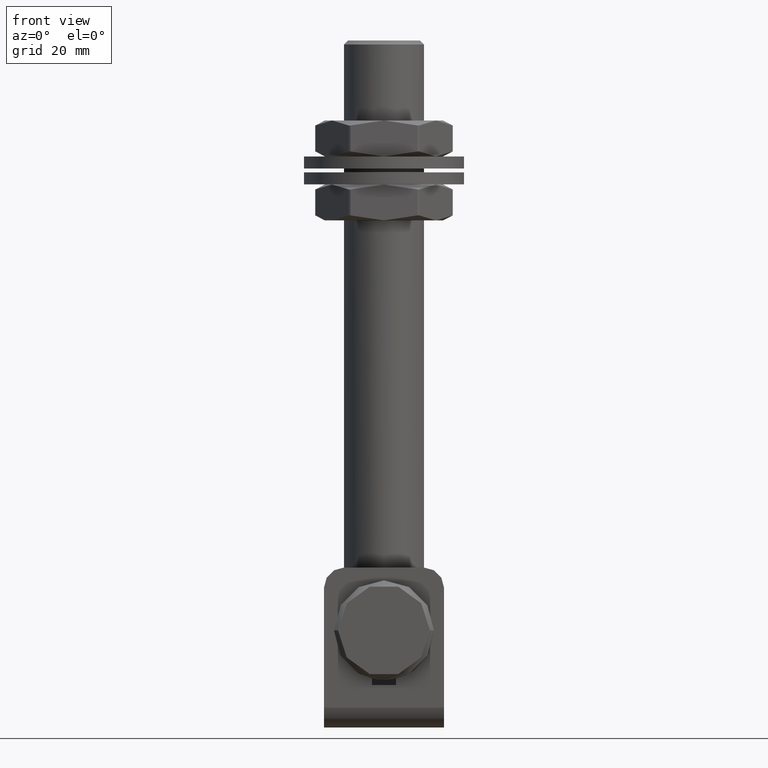
[diagram: clean part render]
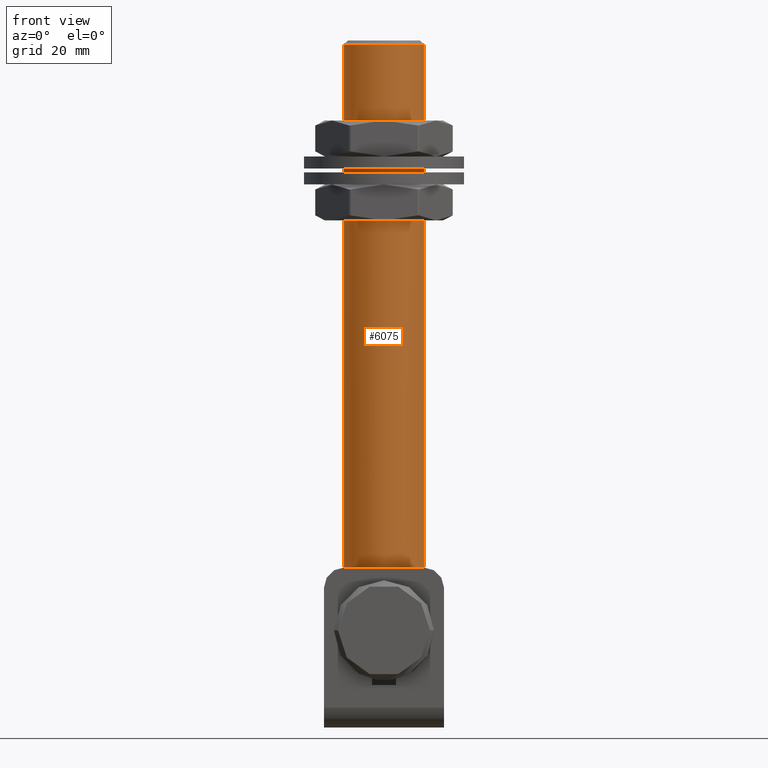
[diagram: same view with one face highlighted and labeled with its STEP entity id]
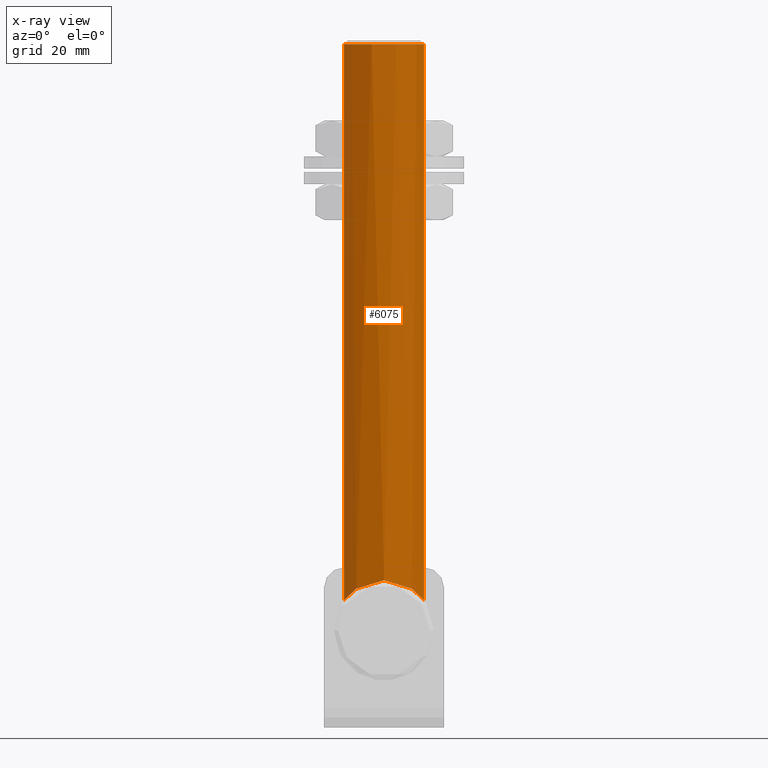
[diagram: x-ray of the same camera — body ghosted, the highlighted face saturated]
A machine part, front view. The second image highlights one B-rep face of the part: STEP entity #6075.
The next image is the same camera in x-ray: the body ghosted, the highlighted face saturated — about 0% of this face is hidden behind the body in this view.
In plain terms, the highlighted cylindrical surface (partial cylindrical patch) has radius 10 mm, axis along (0, 0, 1).
Its self-contained STEP definition (entity closure, byte-faithful):
#30 = CARTESIAN_POINT ( 'NONE',  ( 1.374250701650398421, -9.911119071784762369, 24.92899123197080868 ) ) ;
#45 = CARTESIAN_POINT ( 'NONE',  ( -6.679418956903527160, -7.448775287861184147, 23.06949210261554128 ) ) ;
#87 = CARTESIAN_POINT ( 'NONE',  ( 10.00000000000000000, -0.3502560565025665817, 20.00000000000000355 ) ) ;
#241 = FACE_OUTER_BOUND ( 'NONE', #3022, .T. ) ;
#284 = CARTESIAN_POINT ( 'NONE',  ( 7.566306126111996377, -6.567939238527029211, 22.46407964469007368 ) ) ;
#511 = CARTESIAN_POINT ( 'NONE',  ( -7.569781726641084063, -6.564324631266461374, 22.46162603111286060 ) ) ;
#737 = LINE ( 'NONE', #2096, #1195 ) ;
#1111 = CARTESIAN_POINT ( 'NONE',  ( -10.00000000000000000, -0.3479648885121082724, 20.00000000000000000 ) ) ;
#1195 = VECTOR ( 'NONE', #6473, 1000.000000000000000 ) ;
#1362 = EDGE_CURVE ( 'NONE', #14036, #8735, #14933, .T. ) ;
#1396 = CARTESIAN_POINT ( 'NONE',  ( -10.00000000000000000, 1.224646799147353256E-15, 159.0000000000000000 ) ) ;
#1456 = LINE ( 'NONE', #6330, #12375 ) ;
#1497 = CARTESIAN_POINT ( 'NONE',  ( -9.857243672795044986, -1.717230424704705882, 20.18746517840918386 ) ) ;
#1509 = CARTESIAN_POINT ( 'NONE',  ( 9.324431114186022995, -3.627096256533199448, 20.82699121110412577 ) ) ;
#2096 = CARTESIAN_POINT ( 'NONE',  ( -10.00000000000000000, 1.224646799147353256E-15, -0.002000000000002000178 ) ) ;
#2637 = CARTESIAN_POINT ( 'NONE',  ( -5.166256970493795286, -8.585519514466732005, 23.89746500543920504 ) ) ;
#2823 = CARTESIAN_POINT ( 'NONE',  ( -10.00000000000000000, 1.224646752378375875E-15, 20.00000000000000000 ) ) ;
#3022 = EDGE_LOOP ( 'NONE', ( #11411, #3662, #3456, #11754, #10442 ) ) ;
#3048 = CARTESIAN_POINT ( 'NONE',  ( 9.075513655662634349, -4.211400567891692148, 21.09760723218307277 ) ) ;
#3080 = EDGE_CURVE ( 'NONE', #12982, #9487, #1456, .T. ) ;
#3456 = ORIENTED_EDGE ( 'NONE', *, *, #16065, .T. ) ;
#3662 = ORIENTED_EDGE ( 'NONE', *, *, #1362, .T. ) ;
#4032 = CARTESIAN_POINT ( 'NONE',  ( -1.730530109998883459, -9.855062542011518545, 24.88428080200935000 ) ) ;
#4073 = EDGE_CURVE ( 'NONE', #14036, #10124, #737, .T. ) ;
#4218 = CARTESIAN_POINT ( 'NONE',  ( -1.388437716728532889, -9.909314905636083637, 24.92755172363986205 ) ) ;
#4624 = CARTESIAN_POINT ( 'NONE',  ( 8.476865410468857220, -5.314110963753895689, 21.68948734812277834 ) ) ;
#5438 = CARTESIAN_POINT ( 'NONE',  ( -10.00000000000000000, 1.224646752378375875E-15, 20.00000000000000000 ) ) ;
#5877 = CARTESIAN_POINT ( 'NONE',  ( -9.649686741694331715, -2.709257908122892466, 20.44877604185795761 ) ) ;
#6075 = ADVANCED_FACE ( 'NONE', ( #241 ), #9558, .T. ) ;
#6330 = CARTESIAN_POINT ( 'NONE',  ( 10.00000000000000000, 0.000000000000000000, -0.002000000000002000178 ) ) ;
#6473 = DIRECTION ( 'NONE',  ( 0.000000000000000000, 0.000000000000000000, 1.000000000000000000 ) ) ;
#6998 = CARTESIAN_POINT ( 'NONE',  ( -2.399865314285571039, -9.713786009680276834, 24.77215514560988652 ) ) ;
#7061 = CARTESIAN_POINT ( 'NONE',  ( -3.371084488437768201, -9.420713002333030772, 24.54141910189720832 ) ) ;
#7120 = CARTESIAN_POINT ( 'NONE',  ( 10.00000000000000000, 0.000000000000000000, 159.0000000000000000 ) ) ;
#7205 = CARTESIAN_POINT ( 'NONE',  ( -9.981893644933592213, -0.6926524895749753830, 20.02430988337872364 ) ) ;
#7230 = CARTESIAN_POINT ( 'NONE',  ( -6.911406404652162827, -7.233978837620640867, 22.91891830531925933 ) ) ;
#7336 = CARTESIAN_POINT ( 'NONE',  ( 9.633720589932213585, -2.701595972902841591, 20.46647429444943356 ) ) ;
#7458 = CARTESIAN_POINT ( 'NONE',  ( 6.694166617153108234, -7.454860665151016086, 23.06976843935381893 ) ) ;
#7825 = CARTESIAN_POINT ( 'NONE',  ( 10.00000000000000000, 0.000000000000000000, 20.00000000000000000 ) ) ;
#8138 = CARTESIAN_POINT ( 'NONE',  ( 0.000000000000000000, 0.000000000000000000, 159.0000000000000000 ) ) ;
#8658 = CARTESIAN_POINT ( 'NONE',  ( -7.958693523206850529, -6.086161819726027211, 22.14995395482630514 ) ) ;
#8735 = VERTEX_POINT ( 'NONE', #11111 ) ;
#8811 = CARTESIAN_POINT ( 'NONE',  ( 9.981264286554674570, -0.7016824805871356707, 20.02514871776903860 ) ) ;
#8993 = CARTESIAN_POINT ( 'NONE',  ( 4.578909188192514357, -8.896021799896713489, 24.13523138879866892 ) ) ;
#9382 = CARTESIAN_POINT ( 'NONE',  ( -8.636506845668662891, -5.050665638852388284, 21.53908890856249769 ) ) ;
#9487 = VERTEX_POINT ( 'NONE', #7120 ) ;
#9558 = CYLINDRICAL_SURFACE ( 'NONE', #12530, 10.00000000000000000 ) ;
#9738 = CARTESIAN_POINT ( 'NONE',  ( -8.475462799190543350, -5.316208462108455990, 21.69073630462695235 ) ) ;
#9789 = DIRECTION ( 'NONE',  ( 1.000000000000000000, 0.000000000000000000, 0.000000000000000000 ) ) ;
#9994 = CARTESIAN_POINT ( 'NONE',  ( -2.727846221239849989, -9.626676430304485166, 24.70323070375169650 ) ) ;
#10124 = VERTEX_POINT ( 'NONE', #1396 ) ;
#10136 = CARTESIAN_POINT ( 'NONE',  ( -9.910846157608808937, -1.375898488367102379, 20.11764848231311831 ) ) ;
#10210 = CARTESIAN_POINT ( 'NONE',  ( 7.956118470281105637, -6.090013873220873286, 22.15224733007295654 ) ) ;
#10276 = CARTESIAN_POINT ( 'NONE',  ( 10.00000000000000000, 0.000000000000000000, 20.00000000000000000 ) ) ;
#10442 = ORIENTED_EDGE ( 'NONE', *, *, #10884, .T. ) ;
#10463 = CARTESIAN_POINT ( 'NONE',  ( 9.909587902504750190, -1.384941393758667649, 20.11928917846830345 ) ) ;
#10884 = EDGE_CURVE ( 'NONE', #9487, #10124, #16418, .T. ) ;
#11062 = CARTESIAN_POINT ( 'NONE',  ( -8.936187659190773402, -4.499224823288162867, 21.24293594348636205 ) ) ;
#11111 = CARTESIAN_POINT ( 'NONE',  ( 1.530816689004543226E-15, -10.00000000000000000, 25.00000000000000000 ) ) ;
#11411 = ORIENTED_EDGE ( 'NONE', *, *, #4073, .F. ) ;
#11527 = CARTESIAN_POINT ( 'NONE',  ( -4.604719382695524388, -8.901715038007912639, 24.13882029594657652 ) ) ;
#11672 = CARTESIAN_POINT ( 'NONE',  ( 9.719185129756255037, -2.377017039762587380, 20.36127667337418501 ) ) ;
#11734 = CARTESIAN_POINT ( 'NONE',  ( 5.146846670289301429, -8.579952364115046137, 23.89539328751454406 ) ) ;
#11754 = ORIENTED_EDGE ( 'NONE', *, *, #3080, .T. ) ;
#11863 = CARTESIAN_POINT ( 'NONE',  ( 0.3446634830757700496, -10.00000000000000178, 25.00000000000001421 ) ) ;
#11925 = CARTESIAN_POINT ( 'NONE',  ( 2.726271409501728638, -9.645648563817896814, 24.71806771161173444 ) ) ;
#12375 = VECTOR ( 'NONE', #13510, 1000.000000000000000 ) ;
#12530 = AXIS2_PLACEMENT_3D ( 'NONE', #15753, #12717, #9789 ) ;
#12717 = DIRECTION ( 'NONE',  ( 0.000000000000000000, 0.000000000000000000, 1.000000000000000000 ) ) ;
#12737 = CARTESIAN_POINT ( 'NONE',  ( -0.3459862878855337054, -10.00000000000000000, 25.00000000000000355 ) ) ;
#12982 = VERTEX_POINT ( 'NONE', #7825 ) ;
#13141 = CARTESIAN_POINT ( 'NONE',  ( 8.639570934625524501, -5.045395544241439545, 21.53614988648472206 ) ) ;
#13204 = CARTESIAN_POINT ( 'NONE',  ( 9.436376219439106094, -3.325958065113392426, 20.69927368333388173 ) ) ;
#13260 = CARTESIAN_POINT ( 'NONE',  ( 1.530816689004543226E-15, -10.00000000000000000, 25.00000000000000000 ) ) ;
#13319 = CARTESIAN_POINT ( 'NONE',  ( 0.6884457634639108425, -9.982228642785679895, 24.98576911792630995 ) ) ;
#13510 = DIRECTION ( 'NONE',  ( 0.000000000000000000, 0.000000000000000000, 1.000000000000000000 ) ) ;
#13720 = CARTESIAN_POINT ( 'NONE',  ( -9.075434753051094816, -4.211777729324645669, 21.09772278848301141 ) ) ;
#14036 = VERTEX_POINT ( 'NONE', #2823 ) ;
#14184 = CARTESIAN_POINT ( 'NONE',  ( -6.198202050476251834, -7.853736832385309619, 23.35868740919299924 ) ) ;
#14270 = B_SPLINE_CURVE_WITH_KNOTS ( 'NONE', 3,
 ( #13260, #11863, #13319, #30, #14834, #11925, #17583, #17703, #8993, #11734, #14583, #16056, #7458, #284, #10210, #4624, #13141, #17523, #3048, #1509, #13204, #7336, #11672, #17643, #10463, #8811, #87, #10276 ),
 .UNSPECIFIED., .F., .F.,
 ( 4, 2, 2, 2, 2, 2, 2, 2, 2, 2, 2, 2, 2, 4 ),
 ( 0.04976887011246745873, 0.05080255113879208334, 0.05183623216511670795, 0.05390359421776595023, 0.05493727524409057483, 0.05597095627041519944, 0.05803831832306444866, 0.06010568037571369093, 0.06113936140203831554, 0.06217304242836294015, 0.06320672345468755782, 0.06424040448101217549, 0.06527408550733680703, 0.06630776653366142470 ),
 .UNSPECIFIED. ) ;
#14310 = CARTESIAN_POINT ( 'NONE',  ( -0.6928604096063170070, -9.982095253257000422, 24.98566160000257241 ) ) ;
#14436 = CARTESIAN_POINT ( 'NONE',  ( 1.530816689004543226E-15, -10.00000000000000000, 25.00000000000000000 ) ) ;
#14583 = CARTESIAN_POINT ( 'NONE',  ( 5.419721960306691955, -8.410022888909518102, 23.76781074076335898 ) ) ;
#14834 = CARTESIAN_POINT ( 'NONE',  ( 1.718692986905554498, -9.857173399129127489, 24.88596092427674833 ) ) ;
#14933 = B_SPLINE_CURVE_WITH_KNOTS ( 'NONE', 3,
 ( #5438, #1111, #7205, #10136, #1497, #5877, #16598, #13720, #11062, #9382, #9738, #8658, #511, #7230, #45, #14184, #17246, #2637, #11527, #15905, #7061, #9994, #6998, #4032, #4218, #14310, #12737, #14436 ),
 .UNSPECIFIED., .F., .F.,
 ( 4, 2, 2, 2, 2, 2, 2, 2, 2, 2, 2, 2, 2, 4 ),
 ( 0.03316649806125073624, 0.03420414631445177489, 0.03524179456765281354, 0.03731709107405489778, 0.03835473932725594337, 0.03939238758045698202, 0.04146768408685907320, 0.04250533234006012573, 0.04354298059326117132, 0.04561827709966326944, 0.04665592535286432196, 0.04769357360606536755, 0.04873122185926641314, 0.04976887011246745873 ),
 .UNSPECIFIED. ) ;
#15753 = CARTESIAN_POINT ( 'NONE',  ( 0.000000000000000000, 0.000000000000000000, -0.002000000000002000178 ) ) ;
#15905 = CARTESIAN_POINT ( 'NONE',  ( -3.688424563718022853, -9.300887970542307315, 24.44777882522266665 ) ) ;
#16056 = CARTESIAN_POINT ( 'NONE',  ( 6.207630459425420355, -7.865927062671260295, 23.36568470672623477 ) ) ;
#16065 = EDGE_CURVE ( 'NONE', #8735, #12982, #14270, .T. ) ;
#16418 = CIRCLE ( 'NONE', #16578, 10.00000000000000000 ) ;
#16578 = AXIS2_PLACEMENT_3D ( 'NONE', #8138, #18315, #16996 ) ;
#16598 = CARTESIAN_POINT ( 'NONE',  ( -9.451818680261043326, -3.327682981889797720, 20.68843917077114014 ) ) ;
#16996 = DIRECTION ( 'NONE',  ( 1.000000000000000000, 0.000000000000000000, 0.000000000000000000 ) ) ;
#17246 = CARTESIAN_POINT ( 'NONE',  ( -5.947890897914527741, -8.045056430574108575, 23.49809978020531887 ) ) ;
#17523 = CARTESIAN_POINT ( 'NONE',  ( 8.938526203173072560, -4.494546856743839136, 21.24053430979093449 ) ) ;
#17583 = CARTESIAN_POINT ( 'NONE',  ( 3.365873516884075212, -9.440045038704072411, 24.55555270460997974 ) ) ;
#17643 = CARTESIAN_POINT ( 'NONE',  ( 9.856755515529263434, -1.719633769405615187, 20.18808176523216957 ) ) ;
#17703 = CARTESIAN_POINT ( 'NONE',  ( 4.282472944135480297, -9.042749261084999546, 24.24794830466453632 ) ) ;
#18315 = DIRECTION ( 'NONE',  ( 0.000000000000000000, 0.000000000000000000, -1.000000000000000000 ) ) ;